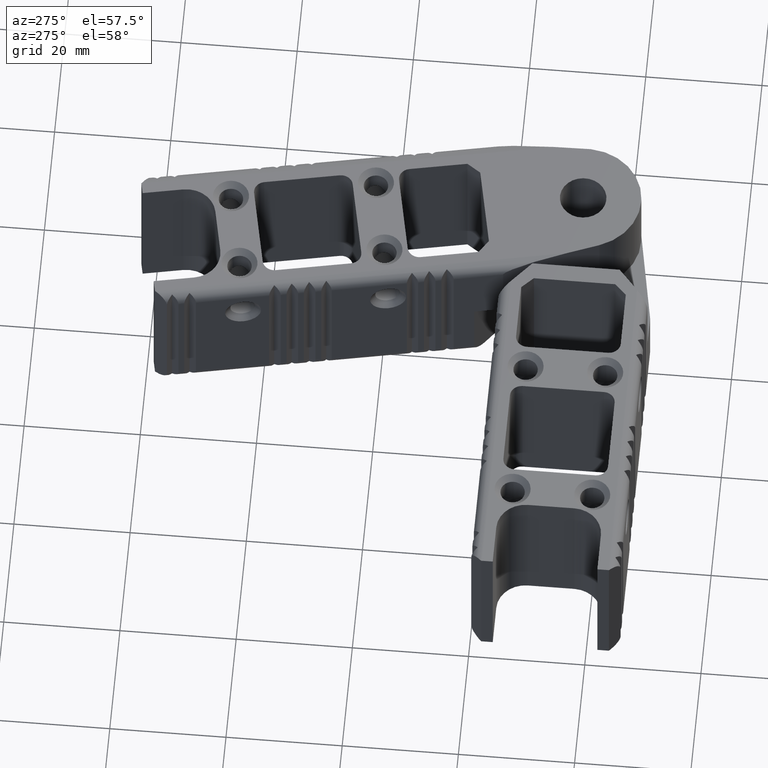
[diagram: clean part render]
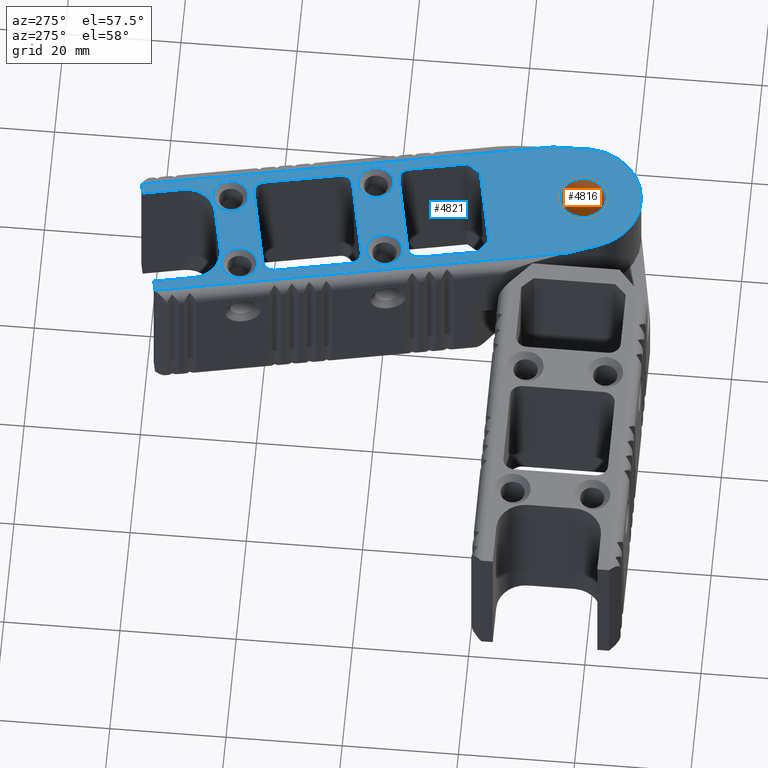
[diagram: same view with the hole feature highlighted: cylindrical wall and planar end face, labeled with their STEP entity ids]
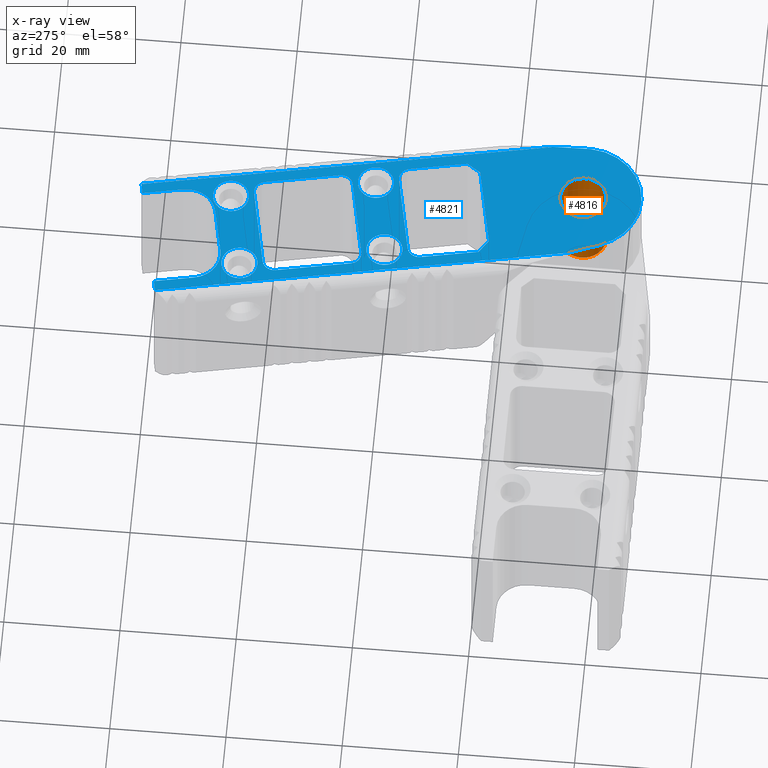
[diagram: x-ray of the same camera — body ghosted, the hole faces saturated]
A machine part, auxiliary view. The highlighted faces form one hole feature of diameter 8 mm: the cylindrical wall (entity #4816, orange) and its adjacent planar end face (entity #4821, blue) — they share a circular edge in the B-rep.
The next image is the same camera in x-ray (body ghosted, the hole faces saturated) — the bore reads through the body.
Wall:
#464=CYLINDRICAL_SURFACE('',#5346,4.00000000000001);
#620=FACE_OUTER_BOUND('',#875,.T.);
#875=EDGE_LOOP('',(#4054,#4055,#4056,#4057,#4058,#4059));
#1206=LINE('',#8448,#1595);
#1595=VECTOR('',#6537,4.00000000000001);
#1891=CIRCLE('',#5347,4.00000000000001);
#1892=CIRCLE('',#5348,4.00000000000001);
#1893=CIRCLE('',#5349,4.00000000000001);
#1894=CIRCLE('',#5350,4.00000000000001);
#2233=VERTEX_POINT('',#8443);
#2234=VERTEX_POINT('',#8444);
#2235=VERTEX_POINT('',#8447);
#2236=VERTEX_POINT('',#8449);
#2884=EDGE_CURVE('',#2233,#2234,#1891,.T.);
#2885=EDGE_CURVE('',#2234,#2233,#1892,.T.);
#2886=EDGE_CURVE('',#2234,#2235,#1206,.T.);
#2887=EDGE_CURVE('',#2235,#2236,#1893,.T.);
#2888=EDGE_CURVE('',#2236,#2235,#1894,.T.);
#4054=ORIENTED_EDGE('',*,*,#2884,.F.);
#4055=ORIENTED_EDGE('',*,*,#2885,.F.);
#4056=ORIENTED_EDGE('',*,*,#2886,.T.);
#4057=ORIENTED_EDGE('',*,*,#2887,.T.);
#4058=ORIENTED_EDGE('',*,*,#2888,.T.);
#4059=ORIENTED_EDGE('',*,*,#2886,.F.);
#4816=ADVANCED_FACE('',(#620),#464,.F.);
#5346=AXIS2_PLACEMENT_3D('',#8442,#6531,#6532);
#5347=AXIS2_PLACEMENT_3D('',#8445,#6533,#6534);
#5348=AXIS2_PLACEMENT_3D('',#8446,#6535,#6536);
#5349=AXIS2_PLACEMENT_3D('',#8450,#6538,#6539);
#5350=AXIS2_PLACEMENT_3D('',#8451,#6540,#6541);
#6531=DIRECTION('center_axis',(5.0562042524128E-17,-6.52223638510904E-17,
-1.));
#6532=DIRECTION('ref_axis',(-1.,-6.59555186912557E-33,-5.0562042524128E-17));
#6533=DIRECTION('center_axis',(5.0562042524128E-17,-6.52223638510904E-17,
-1.));
#6534=DIRECTION('ref_axis',(-1.,-3.29777593456298E-33,-5.0562042524128E-17));
#6535=DIRECTION('center_axis',(5.0562042524128E-17,-6.52223638510904E-17,
-1.));
#6536=DIRECTION('ref_axis',(-1.,-3.29777593456298E-33,-5.0562042524128E-17));
#6537=DIRECTION('',(5.0562042524128E-17,-6.52223638510904E-17,-1.));
#6538=DIRECTION('center_axis',(5.0562042524128E-17,-6.52223638510904E-17,
-1.));
#6539=DIRECTION('ref_axis',(-1.,-6.59555186912557E-33,-5.0562042524128E-17));
#6540=DIRECTION('center_axis',(5.0562042524128E-17,-6.52223638510904E-17,
-1.));
#6541=DIRECTION('ref_axis',(-1.,-6.59555186912557E-33,-5.0562042524128E-17));
#8442=CARTESIAN_POINT('Origin',(25.9856697326638,16.6958976643071,-4.44089209850063E-13));
#8443=CARTESIAN_POINT('',(21.9856697326637,16.6958976643075,12.8499999999998));
#8444=CARTESIAN_POINT('',(29.9856697326638,16.6958976643071,12.8499999999998));
#8445=CARTESIAN_POINT('Origin',(25.9856697326638,16.6958976643075,12.8499999999998));
#8446=CARTESIAN_POINT('Origin',(25.9856697326638,16.6958976643075,12.8499999999998));
#8447=CARTESIAN_POINT('',(29.9856697326638,16.6958976643071,-4.43886961679966E-13));
#8448=CARTESIAN_POINT('',(29.9856697326638,16.6958976643071,-4.43886961679966E-13));
#8449=CARTESIAN_POINT('',(21.9856697326637,16.6958976643071,-4.43886961679966E-13));
#8450=CARTESIAN_POINT('Origin',(25.9856697326638,16.6958976643071,-4.44089209850063E-13));
#8451=CARTESIAN_POINT('Origin',(25.9856697326638,16.6958976643071,-4.44089209850063E-13));
End face:
#107=PLANE('',#5363);
#211=FACE_BOUND('',#887,.T.);
#212=FACE_BOUND('',#888,.T.);
#213=FACE_BOUND('',#889,.T.);
#214=FACE_BOUND('',#890,.T.);
#215=FACE_BOUND('',#891,.T.);
#216=FACE_BOUND('',#892,.T.);
#217=FACE_BOUND('',#893,.T.);
#625=FACE_OUTER_BOUND('',#886,.T.);
#886=EDGE_LOOP('',(#4120,#4121,#4122,#4123,#4124,#4125,#4126,#4127,#4128,
#4129,#4130,#4131));
#887=EDGE_LOOP('',(#4132,#4133,#4134,#4135,#4136,#4137,#4138,#4139));
#888=EDGE_LOOP('',(#4140,#4141));
#889=EDGE_LOOP('',(#4142,#4143));
#890=EDGE_LOOP('',(#4144,#4145));
#891=EDGE_LOOP('',(#4146,#4147));
#892=EDGE_LOOP('',(#4148,#4149));
#893=EDGE_LOOP('',(#4150,#4151,#4152,#4153,#4154,#4155,#4156,#4157));
#1230=LINE('',#8518,#1619);
#1231=LINE('',#8520,#1620);
#1232=LINE('',#8522,#1621);
#1233=LINE('',#8526,#1622);
#1234=LINE('',#8528,#1623);
#1235=LINE('',#8530,#1624);
#1236=LINE('',#8532,#1625);
#1237=LINE('',#8536,#1626);
#1238=LINE('',#8539,#1627);
#1239=LINE('',#8544,#1628);
#1240=LINE('',#8548,#1629);
#1241=LINE('',#8550,#1630);
#1242=LINE('',#8552,#1631);
#1243=LINE('',#8554,#1632);
#1244=LINE('',#8555,#1633);
#1245=LINE('',#8560,#1634);
#1246=LINE('',#8564,#1635);
#1247=LINE('',#8568,#1636);
#1248=LINE('',#8571,#1637);
#1619=VECTOR('',#6591,1000.);
#1620=VECTOR('',#6592,1000.);
#1621=VECTOR('',#6593,1000.);
#1622=VECTOR('',#6596,1000.);
#1623=VECTOR('',#6597,1000.);
#1624=VECTOR('',#6598,1000.);
#1625=VECTOR('',#6599,1000.);
#1626=VECTOR('',#6602,1000.);
#1627=VECTOR('',#6605,1000.);
#1628=VECTOR('',#6608,1000.);
#1629=VECTOR('',#6611,1000.);
#1630=VECTOR('',#6612,1000.);
#1631=VECTOR('',#6613,1000.);
#1632=VECTOR('',#6614,1000.);
#1633=VECTOR('',#6615,1000.);
#1634=VECTOR('',#6618,1000.);
#1635=VECTOR('',#6621,1000.);
#1636=VECTOR('',#6624,1000.);
#1637=VECTOR('',#6627,1000.);
#1865=CIRCLE('',#5287,3.09999999999999);
#1866=CIRCLE('',#5288,3.09999999999999);
#1869=CIRCLE('',#5292,3.09999999999999);
#1870=CIRCLE('',#5293,3.09999999999999);
#1881=CIRCLE('',#5307,3.09999999999999);
#1882=CIRCLE('',#5308,3.09999999999999);
#1885=CIRCLE('',#5312,3.09999999999999);
#1886=CIRCLE('',#5313,3.09999999999999);
#1893=CIRCLE('',#5349,4.00000000000001);
#1894=CIRCLE('',#5350,4.00000000000001);
#1903=CIRCLE('',#5364,10.0000000000002);
#1904=CIRCLE('',#5365,5.00000000000003);
#1905=CIRCLE('',#5366,5.00000000000002);
#1906=CIRCLE('',#5367,2.00000000000001);
#1907=CIRCLE('',#5368,2.00000000000001);
#1908=CIRCLE('',#5369,2.00000000000001);
#1909=CIRCLE('',#5370,2.00000000000001);
#1910=CIRCLE('',#5371,2.00000000000001);
#1911=CIRCLE('',#5372,2.00000000000001);
#2190=VERTEX_POINT('',#8115);
#2191=VERTEX_POINT('',#8117);
#2194=VERTEX_POINT('',#8125);
#2195=VERTEX_POINT('',#8127);
#2206=VERTEX_POINT('',#8155);
#2207=VERTEX_POINT('',#8157);
#2210=VERTEX_POINT('',#8165);
#2211=VERTEX_POINT('',#8167);
#2235=VERTEX_POINT('',#8447);
#2236=VERTEX_POINT('',#8449);
#2265=VERTEX_POINT('',#8516);
#2266=VERTEX_POINT('',#8517);
#2267=VERTEX_POINT('',#8519);
#2268=VERTEX_POINT('',#8521);
#2269=VERTEX_POINT('',#8523);
#2270=VERTEX_POINT('',#8525);
#2271=VERTEX_POINT('',#8527);
#2272=VERTEX_POINT('',#8529);
#2273=VERTEX_POINT('',#8531);
#2274=VERTEX_POINT('',#8533);
#2275=VERTEX_POINT('',#8535);
#2276=VERTEX_POINT('',#8537);
#2277=VERTEX_POINT('',#8540);
#2278=VERTEX_POINT('',#8541);
#2279=VERTEX_POINT('',#8543);
#2280=VERTEX_POINT('',#8545);
#2281=VERTEX_POINT('',#8547);
#2282=VERTEX_POINT('',#8549);
#2283=VERTEX_POINT('',#8551);
#2284=VERTEX_POINT('',#8553);
#2285=VERTEX_POINT('',#8556);
#2286=VERTEX_POINT('',#8557);
#2287=VERTEX_POINT('',#8559);
#2288=VERTEX_POINT('',#8561);
#2289=VERTEX_POINT('',#8563);
#2290=VERTEX_POINT('',#8565);
#2291=VERTEX_POINT('',#8567);
#2292=VERTEX_POINT('',#8569);
#2819=EDGE_CURVE('',#2191,#2190,#1865,.T.);
#2820=EDGE_CURVE('',#2190,#2191,#1866,.T.);
#2824=EDGE_CURVE('',#2195,#2194,#1869,.T.);
#2825=EDGE_CURVE('',#2194,#2195,#1870,.T.);
#2839=EDGE_CURVE('',#2207,#2206,#1881,.T.);
#2840=EDGE_CURVE('',#2206,#2207,#1882,.T.);
#2844=EDGE_CURVE('',#2211,#2210,#1885,.T.);
#2845=EDGE_CURVE('',#2210,#2211,#1886,.T.);
#2887=EDGE_CURVE('',#2235,#2236,#1893,.T.);
#2888=EDGE_CURVE('',#2236,#2235,#1894,.T.);
#2920=EDGE_CURVE('',#2265,#2266,#1230,.T.);
#2921=EDGE_CURVE('',#2265,#2267,#1231,.T.);
#2922=EDGE_CURVE('',#2267,#2268,#1232,.T.);
#2923=EDGE_CURVE('',#2268,#2269,#1903,.T.);
#2924=EDGE_CURVE('',#2269,#2270,#1233,.T.);
#2925=EDGE_CURVE('',#2270,#2271,#1234,.T.);
#2926=EDGE_CURVE('',#2272,#2271,#1235,.T.);
#2927=EDGE_CURVE('',#2273,#2272,#1236,.T.);
#2928=EDGE_CURVE('',#2274,#2273,#1904,.T.);
#2929=EDGE_CURVE('',#2275,#2274,#1237,.T.);
#2930=EDGE_CURVE('',#2276,#2275,#1905,.T.);
#2931=EDGE_CURVE('',#2266,#2276,#1238,.T.);
#2932=EDGE_CURVE('',#2277,#2278,#1906,.T.);
#2933=EDGE_CURVE('',#2278,#2279,#1239,.T.);
#2934=EDGE_CURVE('',#2279,#2280,#1907,.T.);
#2935=EDGE_CURVE('',#2280,#2281,#1240,.T.);
#2936=EDGE_CURVE('',#2281,#2282,#1241,.T.);
#2937=EDGE_CURVE('',#2282,#2283,#1242,.T.);
#2938=EDGE_CURVE('',#2283,#2284,#1243,.T.);
#2939=EDGE_CURVE('',#2284,#2277,#1244,.T.);
#2940=EDGE_CURVE('',#2285,#2286,#1908,.T.);
#2941=EDGE_CURVE('',#2286,#2287,#1245,.T.);
#2942=EDGE_CURVE('',#2287,#2288,#1909,.T.);
#2943=EDGE_CURVE('',#2288,#2289,#1246,.T.);
#2944=EDGE_CURVE('',#2289,#2290,#1910,.T.);
#2945=EDGE_CURVE('',#2290,#2291,#1247,.T.);
#2946=EDGE_CURVE('',#2291,#2292,#1911,.T.);
#2947=EDGE_CURVE('',#2292,#2285,#1248,.T.);
#4120=ORIENTED_EDGE('',*,*,#2920,.F.);
#4121=ORIENTED_EDGE('',*,*,#2921,.T.);
#4122=ORIENTED_EDGE('',*,*,#2922,.T.);
#4123=ORIENTED_EDGE('',*,*,#2923,.T.);
#4124=ORIENTED_EDGE('',*,*,#2924,.T.);
#4125=ORIENTED_EDGE('',*,*,#2925,.T.);
#4126=ORIENTED_EDGE('',*,*,#2926,.F.);
#4127=ORIENTED_EDGE('',*,*,#2927,.F.);
#4128=ORIENTED_EDGE('',*,*,#2928,.F.);
#4129=ORIENTED_EDGE('',*,*,#2929,.F.);
#4130=ORIENTED_EDGE('',*,*,#2930,.F.);
#4131=ORIENTED_EDGE('',*,*,#2931,.F.);
#4132=ORIENTED_EDGE('',*,*,#2932,.T.);
#4133=ORIENTED_EDGE('',*,*,#2933,.T.);
#4134=ORIENTED_EDGE('',*,*,#2934,.T.);
#4135=ORIENTED_EDGE('',*,*,#2935,.T.);
#4136=ORIENTED_EDGE('',*,*,#2936,.T.);
#4137=ORIENTED_EDGE('',*,*,#2937,.T.);
#4138=ORIENTED_EDGE('',*,*,#2938,.T.);
#4139=ORIENTED_EDGE('',*,*,#2939,.T.);
#4140=ORIENTED_EDGE('',*,*,#2888,.F.);
#4141=ORIENTED_EDGE('',*,*,#2887,.F.);
#4142=ORIENTED_EDGE('',*,*,#2844,.T.);
#4143=ORIENTED_EDGE('',*,*,#2845,.T.);
#4144=ORIENTED_EDGE('',*,*,#2839,.T.);
#4145=ORIENTED_EDGE('',*,*,#2840,.T.);
#4146=ORIENTED_EDGE('',*,*,#2824,.T.);
#4147=ORIENTED_EDGE('',*,*,#2825,.T.);
#4148=ORIENTED_EDGE('',*,*,#2819,.T.);
#4149=ORIENTED_EDGE('',*,*,#2820,.T.);
#4150=ORIENTED_EDGE('',*,*,#2940,.T.);
#4151=ORIENTED_EDGE('',*,*,#2941,.T.);
#4152=ORIENTED_EDGE('',*,*,#2942,.T.);
#4153=ORIENTED_EDGE('',*,*,#2943,.T.);
#4154=ORIENTED_EDGE('',*,*,#2944,.T.);
#4155=ORIENTED_EDGE('',*,*,#2945,.T.);
#4156=ORIENTED_EDGE('',*,*,#2946,.T.);
#4157=ORIENTED_EDGE('',*,*,#2947,.T.);
#4821=ADVANCED_FACE('',(#625,#211,#212,#213,#214,#215,#216,#217),#107,.F.);
#5287=AXIS2_PLACEMENT_3D('',#8118,#6397,#6398);
#5288=AXIS2_PLACEMENT_3D('',#8119,#6399,#6400);
#5292=AXIS2_PLACEMENT_3D('',#8128,#6408,#6409);
#5293=AXIS2_PLACEMENT_3D('',#8129,#6410,#6411);
#5307=AXIS2_PLACEMENT_3D('',#8158,#6441,#6442);
#5308=AXIS2_PLACEMENT_3D('',#8159,#6443,#6444);
#5312=AXIS2_PLACEMENT_3D('',#8168,#6452,#6453);
#5313=AXIS2_PLACEMENT_3D('',#8169,#6454,#6455);
#5349=AXIS2_PLACEMENT_3D('',#8450,#6538,#6539);
#5350=AXIS2_PLACEMENT_3D('',#8451,#6540,#6541);
#5363=AXIS2_PLACEMENT_3D('',#8515,#6589,#6590);
#5364=AXIS2_PLACEMENT_3D('',#8524,#6594,#6595);
#5365=AXIS2_PLACEMENT_3D('',#8534,#6600,#6601);
#5366=AXIS2_PLACEMENT_3D('',#8538,#6603,#6604);
#5367=AXIS2_PLACEMENT_3D('',#8542,#6606,#6607);
#5368=AXIS2_PLACEMENT_3D('',#8546,#6609,#6610);
#5369=AXIS2_PLACEMENT_3D('',#8558,#6616,#6617);
#5370=AXIS2_PLACEMENT_3D('',#8562,#6619,#6620);
#5371=AXIS2_PLACEMENT_3D('',#8566,#6622,#6623);
#5372=AXIS2_PLACEMENT_3D('',#8570,#6625,#6626);
#6397=DIRECTION('center_axis',(-5.0562042524128E-17,6.52223638510904E-17,
1.));
#6398=DIRECTION('ref_axis',(1.,5.59588218057036E-16,5.0562042524128E-17));
#6399=DIRECTION('center_axis',(-5.0562042524128E-17,6.52223638510904E-17,
1.));
#6400=DIRECTION('ref_axis',(1.,5.59588218057036E-16,5.0562042524128E-17));
#6408=DIRECTION('center_axis',(-5.0562042524128E-17,6.52223638510904E-17,
1.));
#6409=DIRECTION('ref_axis',(1.,6.59555186912596E-33,5.0562042524128E-17));
#6410=DIRECTION('center_axis',(-5.0562042524128E-17,6.52223638510904E-17,
1.));
#6411=DIRECTION('ref_axis',(1.,6.59555186912596E-33,5.0562042524128E-17));
#6441=DIRECTION('center_axis',(-5.0562042524128E-17,6.52223638510904E-17,
1.));
#6442=DIRECTION('ref_axis',(1.,6.59555186912596E-33,5.0562042524128E-17));
#6443=DIRECTION('center_axis',(-5.0562042524128E-17,6.52223638510904E-17,
1.));
#6444=DIRECTION('ref_axis',(1.,6.59555186912596E-33,5.0562042524128E-17));
#6452=DIRECTION('center_axis',(-5.0562042524128E-17,6.52223638510904E-17,
1.));
#6453=DIRECTION('ref_axis',(1.,5.59588218057036E-16,5.0562042524128E-17));
#6454=DIRECTION('center_axis',(-5.0562042524128E-17,6.52223638510904E-17,
1.));
#6455=DIRECTION('ref_axis',(1.,5.59588218057036E-16,5.0562042524128E-17));
#6538=DIRECTION('center_axis',(5.0562042524128E-17,-6.52223638510904E-17,
-1.));
#6539=DIRECTION('ref_axis',(-1.,-6.59555186912557E-33,-5.0562042524128E-17));
#6540=DIRECTION('center_axis',(5.0562042524128E-17,-6.52223638510904E-17,
-1.));
#6541=DIRECTION('ref_axis',(-1.,-6.59555186912557E-33,-5.0562042524128E-17));
#6589=DIRECTION('center_axis',(5.05620425241281E-17,6.52223638510904E-17,
1.));
#6590=DIRECTION('ref_axis',(1.,3.33066907387546E-16,-5.05620425241281E-17));
#6591=DIRECTION('',(-3.33066907387546E-16,-1.,-6.52223638510904E-17));
#6592=DIRECTION('',(1.,3.33066907387546E-16,-5.05620425241281E-17));
#6593=DIRECTION('',(0.984613006886142,-0.17474903911218,-6.11815901355898E-17));
#6594=DIRECTION('center_axis',(5.0562042524128E-17,-6.52223638510904E-17,
-1.));
#6595=DIRECTION('ref_axis',(-1.,-3.46944695195354E-16,-5.0562042524128E-17));
#6596=DIRECTION('',(-0.984425357794937,-0.175803057226861,3.83082658380733E-17));
#6597=DIRECTION('',(-1.,-3.33066907387546E-16,5.05620425241281E-17));
#6598=DIRECTION('',(-3.33066907387546E-16,-1.,-6.52223638510904E-17));
#6599=DIRECTION('',(-1.,-7.77156117237607E-16,5.0562042524128E-17));
#6600=DIRECTION('center_axis',(5.0562042524128E-17,-6.52223638510904E-17,
-1.));
#6601=DIRECTION('ref_axis',(-1.,-3.4694469519536E-16,-5.0562042524128E-17));
#6602=DIRECTION('',(-3.33066907387546E-16,-1.,-6.52223638510904E-17));
#6603=DIRECTION('center_axis',(5.0562042524128E-17,-6.52223638510904E-17,
-1.));
#6604=DIRECTION('ref_axis',(1.,6.59555186912597E-33,5.0562042524128E-17));
#6605=DIRECTION('',(1.,-4.21884749357558E-15,-5.05620425241285E-17));
#6606=DIRECTION('center_axis',(-5.0562042524128E-17,6.52223638510904E-17,
1.));
#6607=DIRECTION('ref_axis',(-1.,-6.59555186912597E-33,-5.0562042524128E-17));
#6608=DIRECTION('',(-3.33066907387545E-16,-1.,-6.52223638510903E-17));
#6609=DIRECTION('center_axis',(-5.0562042524128E-17,6.52223638510904E-17,
1.));
#6610=DIRECTION('ref_axis',(1.,6.59555186912596E-33,5.0562042524128E-17));
#6611=DIRECTION('',(1.,3.33066907387546E-16,-5.05620425241281E-17));
#6612=DIRECTION('',(0.707106781186548,0.707106781186547,1.03664126246687E-17));
#6613=DIRECTION('',(1.11022302462515E-16,1.,6.52223638510905E-17));
#6614=DIRECTION('',(-0.707106781186548,0.707106781186547,8.18719389035759E-17));
#6615=DIRECTION('',(-1.,-3.33066907387546E-16,5.05620425241281E-17));
#6616=DIRECTION('center_axis',(-5.0562042524128E-17,6.52223638510904E-17,
1.));
#6617=DIRECTION('ref_axis',(-1.,-6.59555186912596E-33,-5.0562042524128E-17));
#6618=DIRECTION('',(1.11022302462515E-16,1.,6.52223638510904E-17));
#6619=DIRECTION('center_axis',(-5.0562042524128E-17,6.52223638510904E-17,
1.));
#6620=DIRECTION('ref_axis',(1.,6.59555186912597E-33,5.0562042524128E-17));
#6621=DIRECTION('',(-1.,-3.33066907387546E-16,5.05620425241281E-17));
#6622=DIRECTION('center_axis',(-5.0562042524128E-17,6.52223638510904E-17,
1.));
#6623=DIRECTION('ref_axis',(1.,6.59555186912597E-33,5.0562042524128E-17));
#6624=DIRECTION('',(-3.33066907387546E-16,-1.,-6.52223638510904E-17));
#6625=DIRECTION('center_axis',(-5.0562042524128E-17,6.52223638510904E-17,
1.));
#6626=DIRECTION('ref_axis',(-1.,-6.59555186912596E-33,-5.0562042524128E-17));
#6627=DIRECTION('',(1.,3.33066907387546E-16,-5.05620425241281E-17));
#8115=CARTESIAN_POINT('',(-5.91433026733672,9.84589766430721,-4.82947015711943E-14));
#8117=CARTESIAN_POINT('',(-12.1143302673366,9.84589766430721,0.));
#8118=CARTESIAN_POINT('Origin',(-9.01433026733667,9.84589766430721,0.));
#8119=CARTESIAN_POINT('Origin',(-9.01433026733667,9.84589766430721,0.));
#8125=CARTESIAN_POINT('',(-5.91433026733639,23.5458976643069,-4.78783679369599E-14));
#8127=CARTESIAN_POINT('',(-12.1143302673362,23.5458976643069,0.));
#8128=CARTESIAN_POINT('Origin',(-9.01433026733633,23.5458976643069,0.));
#8129=CARTESIAN_POINT('Origin',(-9.01433026733633,23.5458976643069,0.));
#8155=CARTESIAN_POINT('',(-30.914330267336,23.5923871144917,-4.85722573273506E-14));
#8157=CARTESIAN_POINT('',(-37.1143302673359,23.5923871144917,0.));
#8158=CARTESIAN_POINT('Origin',(-34.014330267336,23.5923871144917,0.));
#8159=CARTESIAN_POINT('Origin',(-34.014330267336,23.5923871144917,0.));
#8165=CARTESIAN_POINT('',(-30.9142870419198,9.89238711455964,-4.8988590961585E-14));
#8167=CARTESIAN_POINT('',(-37.1142870419196,9.89238711455964,0.));
#8168=CARTESIAN_POINT('Origin',(-34.0142870419197,9.89238711455964,0.));
#8169=CARTESIAN_POINT('Origin',(-34.0142870419197,9.89238711455964,0.));
#8447=CARTESIAN_POINT('',(29.9856697326638,16.6958976643071,-4.43886961679966E-13));
#8449=CARTESIAN_POINT('',(21.9856697326637,16.6958976643071,-4.43886961679966E-13));
#8450=CARTESIAN_POINT('Origin',(25.9856697326638,16.6958976643071,-4.44089209850063E-13));
#8451=CARTESIAN_POINT('Origin',(25.9856697326638,16.6958976643071,-4.44089209850063E-13));
#8515=CARTESIAN_POINT('Origin',(-42.0143302673368,20.6958976643069,0.));
#8516=CARTESIAN_POINT('',(-49.0143302673367,27.5458976643069,0.));
#8517=CARTESIAN_POINT('',(-49.0143302673367,25.695897664307,0.));
#8518=CARTESIAN_POINT('',(-49.0143302673367,25.695897664307,0.));
#8519=CARTESIAN_POINT('',(22.076915051181,27.545897664307,0.));
#8520=CARTESIAN_POINT('',(-42.0143302673364,27.5458976643069,0.));
#8521=CARTESIAN_POINT('',(27.7331601237856,26.5420277331688,-4.44089209850063E-13));
#8522=CARTESIAN_POINT('',(10.8080346969488,29.5458976643068,0.));
#8523=CARTESIAN_POINT('',(28.3375136838239,6.97638995921224,-8.88178419700125E-13));
#8524=CARTESIAN_POINT('Origin',(25.9856697326638,16.6958976643071,-4.44089209850063E-13));
#8525=CARTESIAN_POINT('',(22.0072182984557,5.84589766430688,-8.88178419700125E-13));
#8526=CARTESIAN_POINT('',(10.8080346969485,3.84589766430665,0.));
#8527=CARTESIAN_POINT('',(-49.0143302673367,5.84589766430688,0.));
#8528=CARTESIAN_POINT('',(-42.0143302673364,5.84589766430688,0.));
#8529=CARTESIAN_POINT('',(-49.0143302673364,7.69589766430678,0.));
#8530=CARTESIAN_POINT('',(-49.0143302673364,7.69589766430678,0.));
#8531=CARTESIAN_POINT('',(-42.0143302673364,7.69589766430678,0.));
#8532=CARTESIAN_POINT('',(-42.0143302673364,7.69589766430678,0.));
#8533=CARTESIAN_POINT('',(-37.0143302673361,12.6958976643069,0.));
#8534=CARTESIAN_POINT('Origin',(-42.0143302673366,12.6958976643069,0.));
#8535=CARTESIAN_POINT('',(-37.0143302673361,20.6958976643069,0.));
#8536=CARTESIAN_POINT('',(-37.0143302673361,20.6958976643069,0.));
#8537=CARTESIAN_POINT('',(-42.0143302673363,25.695897664307,0.));
#8538=CARTESIAN_POINT('Origin',(-42.0143302673368,20.6958976643069,0.));
#8539=CARTESIAN_POINT('',(-49.0143302673367,25.695897664307,0.));
#8540=CARTESIAN_POINT('',(-3.01433026733605,25.6958976643071,0.));
#8541=CARTESIAN_POINT('',(-5.01433026733622,23.6958976643068,0.));
#8542=CARTESIAN_POINT('Origin',(-3.01433026733589,23.6958976643069,0.));
#8543=CARTESIAN_POINT('',(-5.01433026733644,9.69589766430701,0.));
#8544=CARTESIAN_POINT('',(-5.01433026733622,23.6958976643068,0.));
#8545=CARTESIAN_POINT('',(-3.01433026733616,7.69589766430689,0.));
#8546=CARTESIAN_POINT('Origin',(-3.01433026733622,9.69589766430712,0.));
#8547=CARTESIAN_POINT('',(6.98566973266346,7.69589766430689,0.));
#8548=CARTESIAN_POINT('',(-3.01433026733616,7.69589766430689,0.));
#8549=CARTESIAN_POINT('',(8.98566973266363,9.69589766430678,0.));
#8550=CARTESIAN_POINT('',(6.98566973266346,7.69589766430689,0.));
#8551=CARTESIAN_POINT('',(8.9856697326634,23.6958976643071,0.));
#8552=CARTESIAN_POINT('',(8.9856697326634,23.6958976643071,0.));
#8553=CARTESIAN_POINT('',(6.98566973266374,25.6958976643068,0.));
#8554=CARTESIAN_POINT('',(6.98566973266374,25.6958976643068,0.));
#8555=CARTESIAN_POINT('',(-3.01433026733605,25.6958976643071,0.));
#8556=CARTESIAN_POINT('',(-15.0143302673364,7.69589766430701,0.));
#8557=CARTESIAN_POINT('',(-13.0143302673362,9.69589766430678,0.));
#8558=CARTESIAN_POINT('Origin',(-15.0143302673364,9.6958976643069,0.));
#8559=CARTESIAN_POINT('',(-13.0143302673363,23.6958976643071,0.));
#8560=CARTESIAN_POINT('',(-13.0143302673363,23.6958976643071,0.));
#8561=CARTESIAN_POINT('',(-15.0143302673366,25.6958976643068,0.));
#8562=CARTESIAN_POINT('Origin',(-15.0143302673366,23.6958976643068,0.));
#8563=CARTESIAN_POINT('',(-28.0143302673361,25.695897664307,0.));
#8564=CARTESIAN_POINT('',(-28.0143302673361,25.695897664307,0.));
#8565=CARTESIAN_POINT('',(-30.0143302673363,23.6958976643068,0.));
#8566=CARTESIAN_POINT('Origin',(-28.0143302673364,23.695897664307,0.));
#8567=CARTESIAN_POINT('',(-30.0143302673364,9.69589766430701,0.));
#8568=CARTESIAN_POINT('',(-30.0143302673363,23.6958976643068,0.));
#8569=CARTESIAN_POINT('',(-28.0143302673365,7.69589766430712,0.));
#8570=CARTESIAN_POINT('Origin',(-28.0143302673366,9.69589766430701,0.));
#8571=CARTESIAN_POINT('',(-28.0143302673365,7.69589766430712,0.));